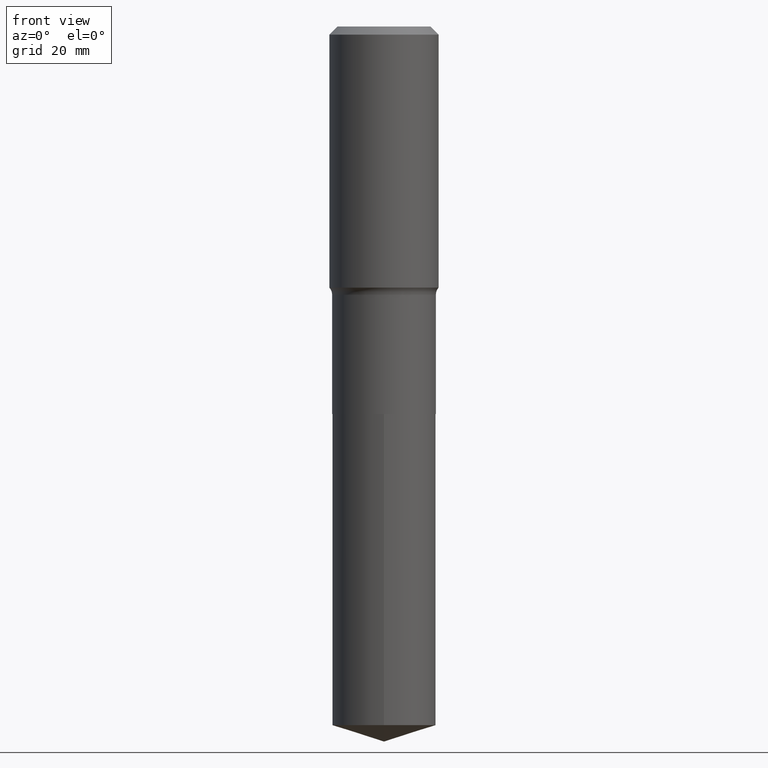
[diagram: clean part render]
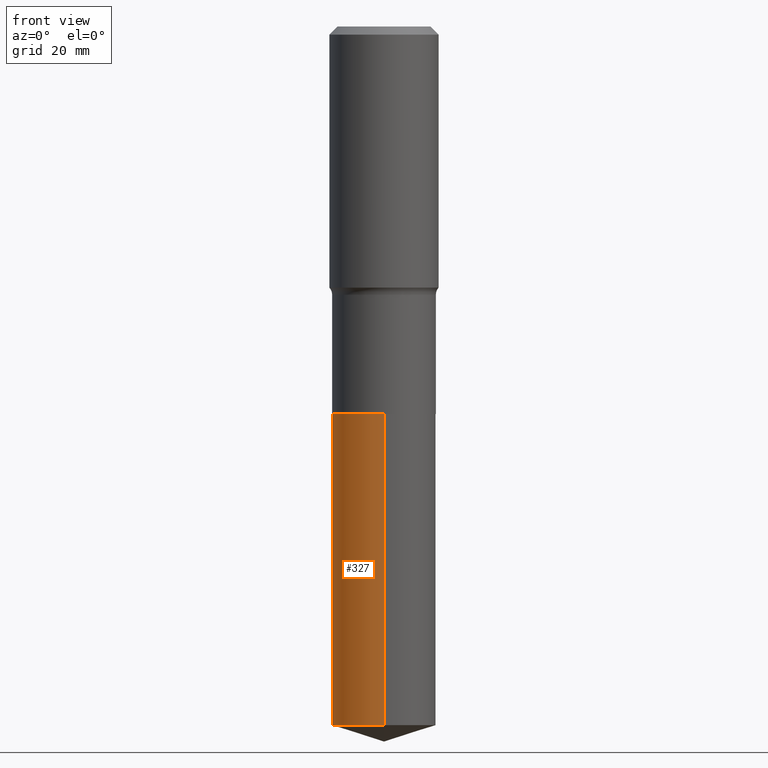
[diagram: same view with one face highlighted and labeled with its STEP entity id]
A machine part, front view. The second image highlights one B-rep face of the part: STEP entity #327.
In plain terms, the highlighted cylindrical surface (partial cylindrical patch) has radius 9.4996 mm, axis along (-0, 0, 1).
Its self-contained STEP definition (entity closure, byte-faithful):
#18 = CARTESIAN_POINT ( 'NONE',  ( 6.835818953929312828E-29, -9.759737786468245182E-15, -2.795300000000000118 ) ) ;
#38 = CIRCLE ( 'NONE', #78, 0.3739999999999999991 ) ;
#46 = CIRCLE ( 'NONE', #214, 0.3739999999999999991 ) ;
#70 = DIRECTION ( 'NONE',  ( -2.445876877377113776E-29, 3.490896957670264327E-15, 1.000000000000000000 ) ) ;
#78 = AXIS2_PLACEMENT_3D ( 'NONE', #146, #70, #292 ) ;
#84 = DIRECTION ( 'NONE',  ( -2.445876877377114056E-29, 3.490896957670264327E-15, 1.000000000000000000 ) ) ;
#113 = VECTOR ( 'NONE', #84, 39.37007874015748143 ) ;
#146 = CARTESIAN_POINT ( 'NONE',  ( 1.232504723924267738E-28, -1.759428191188926946E-14, -5.039578252959262983 ) ) ;
#160 = CARTESIAN_POINT ( 'NONE',  ( 2.657429831742897751E-15, 0.3739999999999902847, -2.795300000000001006 ) ) ;
#163 = EDGE_CURVE ( 'NONE', #415, #270, #46, .T. ) ;
#193 = VERTEX_POINT ( 'NONE', #432 ) ;
#196 = FACE_OUTER_BOUND ( 'NONE', #489, .T. ) ;
#209 = DIRECTION ( 'NONE',  ( -6.982962677686266711E-15, -1.000000000000000000, 2.921762560068730595E-15 ) ) ;
#214 = AXIS2_PLACEMENT_3D ( 'NONE', #242, #328, #482 ) ;
#215 = CARTESIAN_POINT ( 'NONE',  ( -2.611628041454595371E-15, -0.3740000000000097691, -2.795299999999998786 ) ) ;
#216 = EDGE_CURVE ( 'NONE', #193, #305, #38, .T. ) ;
#219 = ORIENTED_EDGE ( 'NONE', *, *, #315, .F. ) ;
#220 = DIRECTION ( 'NONE',  ( -2.445876877377114056E-29, 3.490896957670264327E-15, 1.000000000000000000 ) ) ;
#241 = ORIENTED_EDGE ( 'NONE', *, *, #259, .T. ) ;
#242 = CARTESIAN_POINT ( 'NONE',  ( 6.835818953929312828E-29, -9.759737786468245182E-15, -2.795300000000000118 ) ) ;
#247 = DIRECTION ( 'NONE',  ( -2.445876877377113776E-29, 3.490896957670264327E-15, 1.000000000000000000 ) ) ;
#259 = EDGE_CURVE ( 'NONE', #305, #270, #336, .T. ) ;
#263 = ORIENTED_EDGE ( 'NONE', *, *, #163, .F. ) ;
#268 = LINE ( 'NONE', #461, #113 ) ;
#270 = VERTEX_POINT ( 'NONE', #215 ) ;
#277 = ORIENTED_EDGE ( 'NONE', *, *, #216, .T. ) ;
#292 = DIRECTION ( 'NONE',  ( -6.982962677686266711E-15, -1.000000000000000000, 2.921762560068730595E-15 ) ) ;
#305 = VERTEX_POINT ( 'NONE', #483 ) ;
#315 = EDGE_CURVE ( 'NONE', #193, #415, #268, .T. ) ;
#327 = ADVANCED_FACE ( 'NONE', ( #196 ), #382, .T. ) ;
#328 = DIRECTION ( 'NONE',  ( -2.445876877377113776E-29, 3.490896957670264327E-15, 1.000000000000000000 ) ) ;
#336 = LINE ( 'NONE', #368, #456 ) ;
#368 = CARTESIAN_POINT ( 'NONE',  ( -2.611628041454595371E-15, -0.3740000000000097691, -2.795299999999998786 ) ) ;
#382 = CYLINDRICAL_SURFACE ( 'NONE', #404, 0.3739999999999999991 ) ;
#404 = AXIS2_PLACEMENT_3D ( 'NONE', #18, #247, #209 ) ;
#415 = VERTEX_POINT ( 'NONE', #160 ) ;
#432 = CARTESIAN_POINT ( 'NONE',  ( 2.657429831742896568E-15, 0.3739999999999821800, -5.039578252959263871 ) ) ;
#456 = VECTOR ( 'NONE', #220, 39.37007874015748143 ) ;
#461 = CARTESIAN_POINT ( 'NONE',  ( 2.657429831742842925E-15, 0.3739999999999902847, -2.795300000000001006 ) ) ;
#482 = DIRECTION ( 'NONE',  ( -6.982962677686266711E-15, -1.000000000000000000, 2.921762560068730595E-15 ) ) ;
#483 = CARTESIAN_POINT ( 'NONE',  ( -2.611628041454538968E-15, -0.3740000000000174296, -5.039578252959262095 ) ) ;
#489 = EDGE_LOOP ( 'NONE', ( #219, #277, #241, #263 ) ) ;